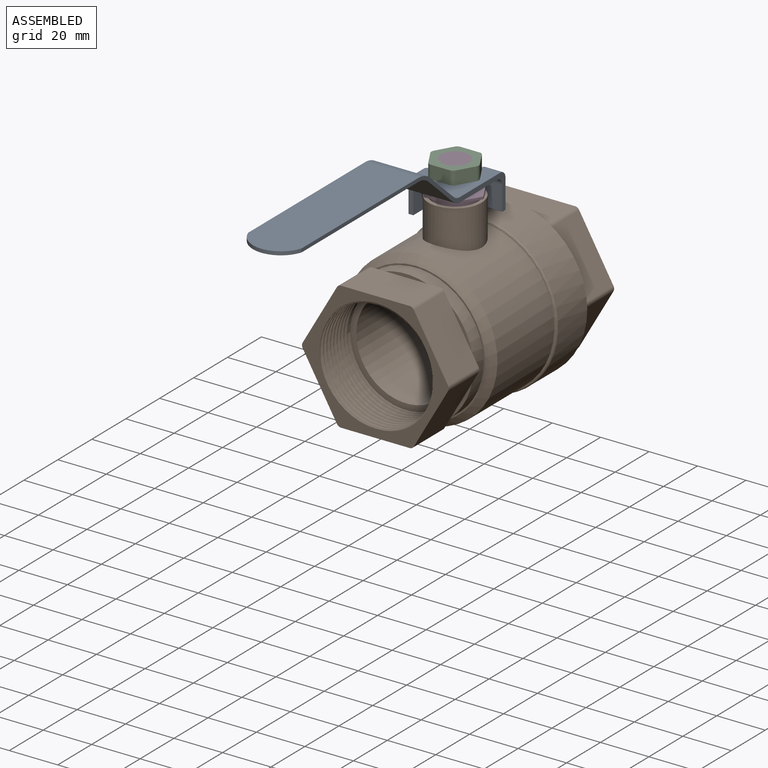
[diagram: assembled view]
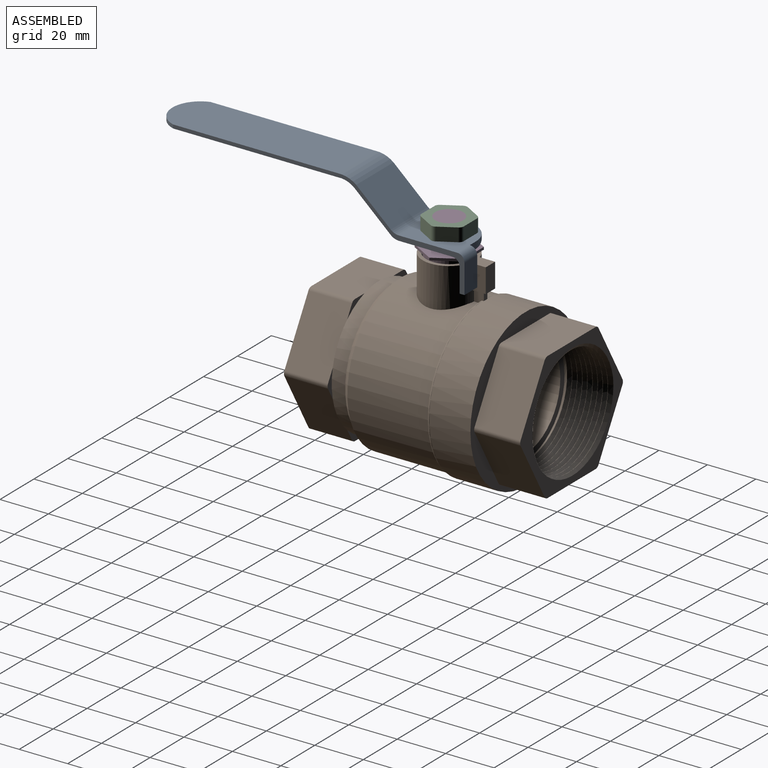
[diagram: assembled view, second angle]
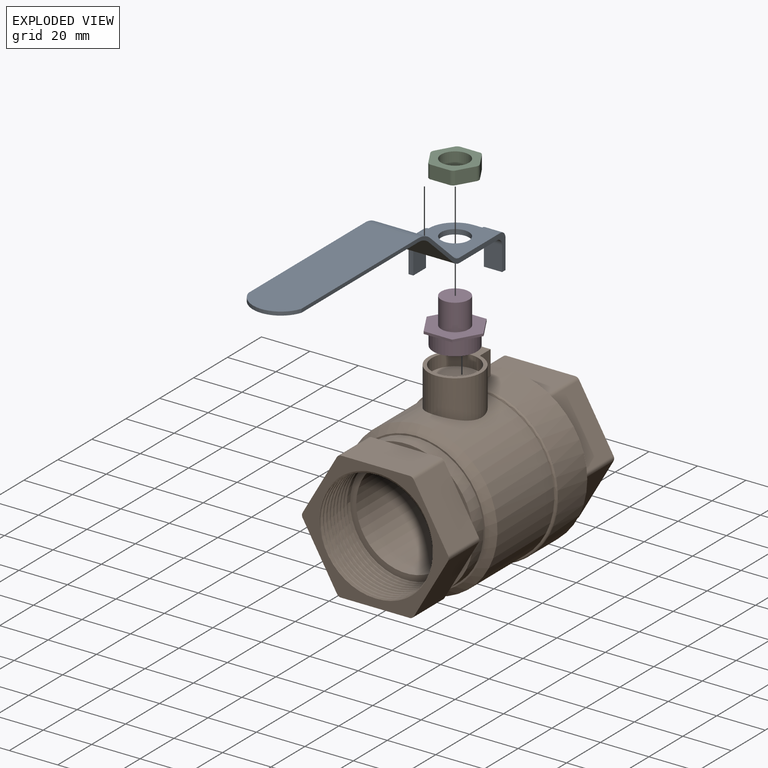
[diagram: exploded view]
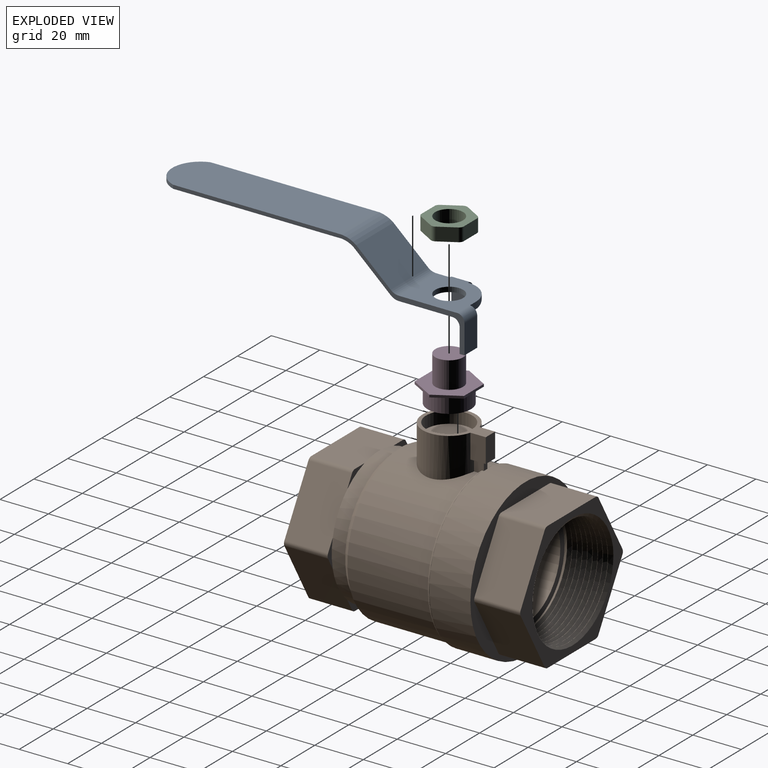
[diagram: exploded view, second angle]
ASSEMBLY  parts=4 mates=3
PART A: 31 faces, bbox 25x128.2x31.5 mm
  f0: plane 22.08x22mm, normal (0,0,-1), area 345.7mm2, adj f3,f4,f6,f7,f14,f18,f27,f29
  f1: plane 76.16x22mm, normal (0,0,1), area 1628.4mm2, adj f3,f6,f11,f15
  f2: plane 22x1.34mm, normal (0,0,-1), area 29.5mm2, adj f3,f6,f12,f16
  f3: plane 98.74x18.51mm, normal (1,0,0), area 160.6mm2, adj f0,f1,f2,f8,f9,f10,f11,f12
  f4: cylinder r=11mm len=11mm, axis (0,0,1), area 39.7mm2, adj f0,f5,f8,f19,f27,f29
  f5: plane 3.5x2.76mm, normal (0,-1,0), area 9.7mm2, adj f4,f8,f23,f27
  f6: plane 120.24x31.51mm, normal (-1,0,0), area 229.6mm2, adj f0,f1,f2,f8,f9,f10,f11,f12
  f7: cylinder r=5.75mm len=11.5mm, axis (0,0,1), area 72.3mm2, adj f0,f8
  f8: plane 24.08x22mm, normal (0,0,1), area 399.9mm2, adj f3,f4,f5,f6,f7,f13,f28,f30
  f9: plane 22x14.28mm, normal (0,-0.67,0.74), area 423.1mm2, adj f3,f6,f11,f13
  f10: plane 22x14.28mm, normal (0,0.67,-0.74), area 423.1mm2, adj f3,f6,f12,f14
  f11: cylinder r=10.76mm len=22mm, axis (-1,0,0), area 173.8mm2, adj f1,f3,f6,f9
  f12: cylinder r=9.28mm len=22mm, axis (-1,0,0), area 149.9mm2, adj f2,f3,f6,f10
  f13: cylinder r=5mm len=22mm, axis (-1,0,0), area 80.7mm2, adj f3,f6,f8,f9
  f14: cylinder r=5mm len=22mm, axis (-1,0,0), area 80.7mm2, adj f0,f3,f6,f10
  f15: cylinder r=11.57mm len=22mm, axis (0,0,1), area 43.6mm2, adj f1,f3,f6,f17
  f16: plane 22x0.02mm, normal (0,-1,0), area 0.3mm2, adj f2,f3,f6,f17
  f17: plane 76.16x22mm, normal (0,0,-1), area 1628.4mm2, adj f3,f6,f15,f16
  f18: plane 15x5mm, normal (0,1,0), area 32mm2, adj f0,f3,f20,f21,f22,f29,f30
  f19: plane 15x3mm, normal (0,-1,0), area 31.5mm2, adj f4,f20,f21,f22,f29,f30
  f20: plane 12x7.5mm, normal (1,0,0), area 90mm2, adj f18,f19,f22,f30
  f21: plane 10x7.5mm, normal (-1,0,0), area 75mm2, adj f18,f19,f22,f29
  f22: plane 7.5x2mm, normal (0,0,-1), area 15mm2, adj f18,f19,f20,f21
  f23: plane 15x3mm, normal (1,0,0), area 31.5mm2, adj f5,f24,f25,f26,f27,f28
  f24: plane 12x7.5mm, normal (0,-1,0), area 90mm2, adj f6,f23,f26,f28
  f25: plane 10x7.5mm, normal (0,1,0), area 75mm2, adj f6,f23,f26,f27
  f26: plane 7.5x2mm, normal (0,0,-1), area 15mm2, adj f6,f23,f24,f25
  f27: cylinder r=3mm len=17.32mm, axis (1,0,0), area 52.1mm2, adj f0,f4,f5,f6,f23,f25
  f28: cylinder r=3mm len=7.5mm, axis (-1,0,0), area 35.3mm2, adj f6,f8,f23,f24
  f29: cylinder r=3mm len=13.82mm, axis (0,1,0), area 44.5mm2, adj f0,f4,f18,f19,f21
  f30: cylinder r=3mm len=7.5mm, axis (0,-1,0), area 35.3mm2, adj f8,f18,f19,f20
PART B: 71 faces, bbox 71.6x100.8x82.6 mm
  f0: cylinder r=23mm len=46mm, axis (0,1,0), area 802.1mm2, adj f1,f30,f68,f69,f70
  f1: plane 61.56x53.98mm, normal (0,-1,0), area 697.8mm2, adj f0,f17,f18,f19,f20,f21,f22,f23
  f2: cylinder r=23mm len=46mm, axis (0,-1,0), area 341.3mm2, adj f3,f10,f65,f66,f67
  f3: plane 61.79x54.21mm, normal (0,1,0), area 648mm2, adj f2,f42,f43,f44,f45,f46,f47,f48
  f4: plane 3.21x2.83mm, normal (0,0,1), area 7.9mm2, adj f5,f8,f9,f56
  f5: plane 2.83x0.22mm, normal (0,-1,0), area 0.4mm2, adj f4,f7,f56
  f6: cylinder r=32.5mm len=65mm, axis (0,-1,0), area 3470.4mm2, adj f7,f11,f56,f57,f58
  f7: torus R=31.5mm, axis (0,1,0), area 313.9mm2, adj f5,f6,f9,f41,f56,f57
  f8: cylinder r=11mm len=22mm, axis (0,0,-1), area 1023.3mm2, adj f4,f9,f40,f55,f56,f57,f60,f61
  f9: cylinder r=31.5mm len=63mm, axis (0,-1,0), area 6222.7mm2, adj f4,f7,f8,f40,f54
  f10: plane 46x46mm, normal (0,1,0), area 341.6mm2, adj f2,f37
  f11: plane 65x65mm, normal (0,1,0), area 886.9mm2, adj f6,f42,f43,f44,f45,f46,f47,f48
  f12: plane 10.06x5.81mm, normal (0,1,0), area 14.5mm2, adj f23,f24,f25,f38
  f13: plane 10.06x5.81mm, normal (0,1,0), area 14.5mm2, adj f21,f22,f23,f38
  f14: plane 11.61x3.04mm, normal (0,1,0), area 14.5mm2, adj f19,f20,f21,f38
  f15: plane 10.06x5.81mm, normal (0,1,0), area 14.5mm2, adj f17,f18,f19,f38
  f16: plane 10.06x5.81mm, normal (0,1,0), area 14.5mm2, adj f17,f27,f28,f38
  f17: plane 28.29x18mm, normal (0,0,-1), area 509.2mm2, adj f1,f15,f16,f18,f28,f31
  f18: cylinder r=2mm len=18mm, axis (0,1,0), area 37.7mm2, adj f1,f15,f17,f19
  f19: plane 24.5x18mm, normal (0.87,0,-0.5), area 509.2mm2, adj f1,f14,f15,f18,f20,f36
  f20: cylinder r=2mm len=18mm, axis (0,1,0), area 37.7mm2, adj f1,f14,f19,f21
  f21: plane 24.5x18mm, normal (0.87,0,0.5), area 509.2mm2, adj f1,f13,f14,f20,f22,f35
  f22: cylinder r=2mm len=18mm, axis (0,1,0), area 37.7mm2, adj f1,f13,f21,f23
  f23: plane 28.29x18mm, normal (0,0,1), area 509.2mm2, adj f1,f12,f13,f22,f24,f34
  f24: cylinder r=2mm len=18mm, axis (0,1,0), area 37.7mm2, adj f1,f12,f23,f25
  f25: plane 24.5x18mm, normal (-0.87,0,0.5), area 509.2mm2, adj f1,f12,f24,f26,f29,f33
  f26: cylinder r=2mm len=18mm, axis (0,1,0), area 37.7mm2, adj f1,f25,f27,f29
  f27: plane 24.5x18mm, normal (-0.87,0,-0.5), area 509.2mm2, adj f1,f16,f26,f28,f29,f32
  f28: cylinder r=2mm len=18mm, axis (0,1,0), area 37.7mm2, adj f1,f16,f17,f27
  f29: plane 11.61x3.04mm, normal (0,1,0), area 14.5mm2, adj f25,f26,f27,f38
  f30: plane 46x46mm, normal (0,-1,0), area 341.6mm2, adj f0,f37
  f31: plane 17.19x1.36mm, normal (0,-1,0), area 15.6mm2, adj f17,f38
  f32: plane 14.89x8.59mm, normal (0,-1,0), area 15.6mm2, adj f27,f38
  f33: plane 14.89x8.59mm, normal (0,-1,0), area 15.6mm2, adj f25,f38
  f34: plane 17.19x1.36mm, normal (0,-1,0), area 15.6mm2, adj f23,f38
  f35: plane 14.89x8.59mm, normal (0,-1,0), area 15.6mm2, adj f21,f38
  f36: plane 14.89x8.59mm, normal (0,-1,0), area 15.6mm2, adj f19,f38
  f37: cylinder r=20.5mm len=60.5mm, axis (0,-1,0), area 7792.7mm2, adj f10,f30
  f38: cylinder r=27.86mm len=55.72mm, axis (0,-1,0), area 1050.3mm2, adj f12,f13,f14,f15,f16,f29,f31,f32
  f39: plane 57x57mm, normal (0,-1,0), area 113.5mm2, adj f38,f54
  f40: plane 3.21x2.83mm, normal (0,0,1), area 7.9mm2, adj f8,f9,f41,f57
  f41: plane 2.83x0.22mm, normal (0,-1,0), area 0.4mm2, adj f7,f40,f57
  f42: plane 28.29x19mm, normal (0,0,-1), area 537.5mm2, adj f3,f11,f43,f53
  f43: cylinder r=2mm len=19mm, axis (0,-1,0), area 39.8mm2, adj f3,f11,f42,f44
  f44: plane 24.5x19mm, normal (-0.87,0,-0.5), area 537.5mm2, adj f3,f11,f43,f45
  f45: cylinder r=2mm len=19mm, axis (0,-1,0), area 39.8mm2, adj f3,f11,f44,f46
  f46: plane 24.5x19mm, normal (-0.87,0,0.5), area 537.5mm2, adj f3,f11,f45,f47
  f47: cylinder r=2mm len=19mm, axis (0,-1,0), area 39.8mm2, adj f3,f11,f46,f48
  f48: plane 28.29x19mm, normal (0,0,1), area 537.5mm2, adj f3,f11,f47,f49
  f49: cylinder r=2mm len=19mm, axis (0,-1,0), area 39.8mm2, adj f3,f11,f48,f50
  f50: plane 24.5x19mm, normal (0.87,0,0.5), area 537.5mm2, adj f3,f11,f49,f51
  f51: cylinder r=2mm len=19mm, axis (0,-1,0), area 39.8mm2, adj f3,f11,f50,f52
  f52: plane 24.5x19mm, normal (0.87,0,-0.5), area 537.5mm2, adj f3,f11,f51,f53
  f53: cylinder r=2mm len=19mm, axis (0,-1,0), area 39.8mm2, adj f3,f11,f42,f52
  f54: cone r=31.5mm half-angle=45deg, axis (0,1,0), area 799.7mm2, adj f9,f39
  f55: plane 28x22mm, normal (0,0,1), area 130.2mm2, adj f8,f59,f60,f61,f63
  f56: plane 5.01x4.09mm, normal (1,0,0), area 18.7mm2, adj f4,f5,f6,f7,f8,f58,f62
  f57: plane 5.01x4.09mm, normal (-1,0,0), area 18.7mm2, adj f6,f7,f8,f40,f41,f58,f62
  f58: plane 3.78x2.11mm, normal (0,1,0), area 7.9mm2, adj f6,f56,f57,f62
  f59: plane 10x5.5mm, normal (0,1,0), area 55mm2, adj f55,f60,f61,f62
  f60: plane 10x6.35mm, normal (-1,0,0), area 63.5mm2, adj f8,f55,f59,f62
  f61: plane 10x6.35mm, normal (1,0,0), area 63.5mm2, adj f8,f55,f59,f62
  f62: plane 6.35x5.5mm, normal (0,0,-1), area 25.1mm2, adj f8,f56,f57,f58,f59,f60,f61
  f63: cylinder r=9.5mm len=19mm, axis (0,0,1), area 298.5mm2, adj f55,f64
  f64: plane 19x19mm, normal (0,0,1), area 283.5mm2, adj f63
  f65: plane 2x1.73mm, normal (0,0,-1), area 1.7mm2, adj f2,f66,f67
  f66: bspline ~57.12x49.46mm, area 2622.2mm2, adj f2,f3,f65,f67
  f67: bspline ~57.12x49.46mm, area 2485.4mm2, adj f2,f3,f65,f66
  f68: plane 1.5x1.3mm, normal (0,0,-1), area 1mm2, adj f0,f69,f70
  f69: bspline ~56.12x48.6mm, area 1961.1mm2, adj f0,f1,f68,f70
  f70: bspline ~56.12x48.6mm, area 1877.8mm2, adj f0,f1,f68,f69
PART C: 15 faces, bbox 19.6x17.5x5.5 mm
  f0: plane 7.79x5.5mm, normal (0,-1,0), area 42.9mm2, adj f1,f11,f13,f14
  f1: cylinder r=2mm len=5.5mm, axis (0,0,1), area 11.5mm2, adj f0,f2,f13,f14
  f2: plane 6.75x5.5mm, normal (0.87,-0.5,0), area 42.9mm2, adj f1,f3,f13,f14
  f3: cylinder r=2mm len=5.5mm, axis (0,0,1), area 11.5mm2, adj f2,f4,f13,f14
  f4: plane 6.75x5.5mm, normal (0.87,0.5,0), area 42.9mm2, adj f3,f5,f13,f14
  f5: cylinder r=2mm len=5.5mm, axis (0,0,1), area 11.5mm2, adj f4,f6,f13,f14
  f6: plane 7.79x5.5mm, normal (0,1,0), area 42.9mm2, adj f5,f7,f13,f14
  f7: cylinder r=2mm len=5.5mm, axis (0,0,1), area 11.5mm2, adj f6,f8,f13,f14
  f8: plane 6.75x5.5mm, normal (-0.87,0.5,0), area 42.9mm2, adj f7,f9,f13,f14
  f9: cylinder r=2mm len=5.5mm, axis (0,0,1), area 11.5mm2, adj f8,f10,f13,f14
  f10: plane 6.75x5.5mm, normal (-0.87,-0.5,0), area 42.9mm2, adj f9,f11,f13,f14
  f11: cylinder r=2mm len=5.5mm, axis (0,0,1), area 11.5mm2, adj f0,f10,f13,f14
  f12: cylinder r=5.75mm len=11.5mm, axis (0,0,1), area 198.7mm2, adj f13,f14
  f13: plane 19.59x17.5mm, normal (0,0,-1), area 160.1mm2, adj f0,f1,f2,f3,f4,f5,f6,f7
  f14: plane 19.59x17.5mm, normal (0,0,1), area 160.1mm2, adj f0,f1,f2,f3,f4,f5,f6,f7
PART D: 12 faces, bbox 23.5x20.4x18.5 mm
  f0: cylinder r=8.98mm len=17.96mm, axis (0,0,-1), area 366.7mm2, adj f1,f9
  f1: plane 17.96x17.96mm, normal (0,0,-1), area 253.3mm2, adj f0
  f2: plane 10.18x5.88mm, normal (-0.87,0.5,0), area 11.8mm2, adj f3,f7,f8,f9
  f3: plane 10.18x5.88mm, normal (-0.87,-0.5,0), area 11.8mm2, adj f2,f4,f8,f9
  f4: plane 11.75x1mm, normal (0,-1,0), area 11.8mm2, adj f3,f5,f8,f9
  f5: plane 10.18x5.88mm, normal (0.87,-0.5,0), area 11.8mm2, adj f4,f6,f8,f9
  f6: plane 10.18x5.88mm, normal (0.87,0.5,0), area 11.8mm2, adj f5,f7,f8,f9
  f7: plane 11.75x1mm, normal (0,1,0), area 11.8mm2, adj f2,f6,f8,f9
  f8: plane 23.51x20.36mm, normal (0,0,1), area 255mm2, adj f2,f3,f4,f5,f6,f7,f10
  f9: plane 23.51x20.36mm, normal (0,0,-1), area 105.6mm2, adj f0,f2,f3,f4,f5,f6,f7
  f10: cylinder r=5.75mm len=11.5mm, axis (0,0,-1), area 397.4mm2, adj f8,f11
  f11: plane 11.5x11.5mm, normal (0,0,1), area 103.9mm2, adj f10
PLACE A rot(axis=(0,0,1),180deg) t=(-50.49,-118.88,-61.18)mm
PLACE B t=(-50.49,-176.88,-61.18)mm
PLACE C t=(-50.49,-176.88,-61.18)mm
PLACE D t=(-50.49,-176.88,-61.18)mm
MATE fastened D.f0 <-> B.f8  axis (0,0,-1) through (-50.49,-147.88,-19.92)mm
MATE fastened A.f4 <-> C.f12  axis (0,0,1) through (-50.49,-147.88,-7.92)mm
MATE fastened C.f12 <-> D.f10  axis (0,0,1) through (-50.49,-147.88,-1.42)mm
